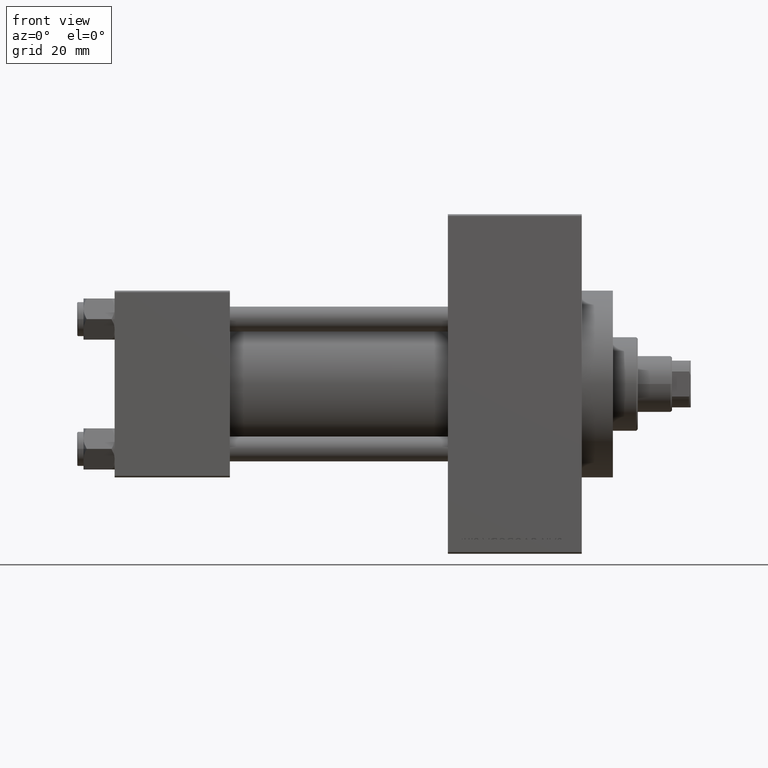
[diagram: clean part render]
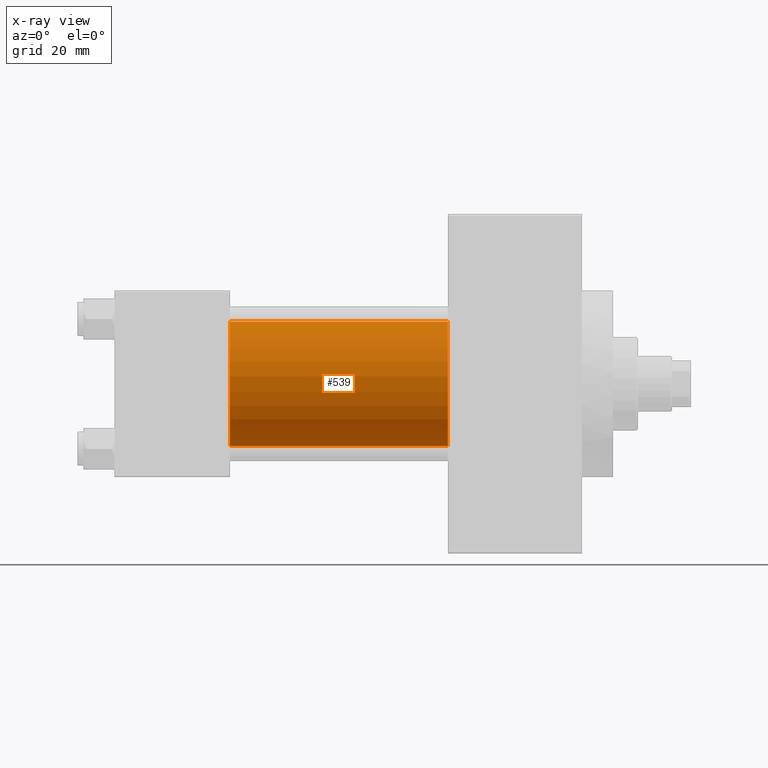
[diagram: x-ray — body ghosted, one internal face saturated and labeled with its STEP entity id]
A machine part, front view, then the same camera in x-ray: the body is ghosted and one INTERNAL B-rep face — a face not visible from any outside direction — is saturated and labeled: STEP entity #539.
In plain terms, the highlighted cylindrical surface (partial cylindrical patch) has radius 20 mm, axis along (-1, -0, -0).
Its self-contained STEP definition (entity closure, byte-faithful):
#207 = DIRECTION ( 'NONE',  ( -1.000000000000000000, -0.000000000000000000, -0.000000000000000000 ) ) ;
#306 = CIRCLE ( 'NONE', #28190, 20.00000000000000000 ) ;
#539 = ADVANCED_FACE ( 'NONE', ( #4692 ), #42842, .F. ) ;
#667 = CARTESIAN_POINT ( 'NONE',  ( 37.00000000000000000, -2.602085213965210642E-15, 0.000000000000000000 ) ) ;
#2317 = VECTOR ( 'NONE', #19751, 1000.000000000000000 ) ;
#2398 = VERTEX_POINT ( 'NONE', #23637 ) ;
#4118 = ORIENTED_EDGE ( 'NONE', *, *, #28601, .F. ) ;
#4518 = DIRECTION ( 'NONE',  ( 0.000000000000000000, 0.000000000000000000, -1.000000000000000000 ) ) ;
#4692 = FACE_OUTER_BOUND ( 'NONE', #46198, .T. ) ;
#8412 = ORIENTED_EDGE ( 'NONE', *, *, #38231, .T. ) ;
#8647 = EDGE_CURVE ( 'NONE', #22815, #20353, #14584, .T. ) ;
#10279 = EDGE_CURVE ( 'NONE', #14136, #2398, #306, .T. ) ;
#10324 = AXIS2_PLACEMENT_3D ( 'NONE', #19902, #39343, #31617 ) ;
#11414 = DIRECTION ( 'NONE',  ( 1.000000000000000000, 0.000000000000000000, 0.000000000000000000 ) ) ;
#11692 = CARTESIAN_POINT ( 'NONE',  ( 37.00000000000000000, -2.602085213965210642E-15, 20.00000000000000000 ) ) ;
#14136 = VERTEX_POINT ( 'NONE', #11692 ) ;
#14584 = CIRCLE ( 'NONE', #41662, 20.00000000000000000 ) ;
#19146 = CARTESIAN_POINT ( 'NONE',  ( 107.0000000000000142, -1.527916156705042519E-16, -20.00000000000000000 ) ) ;
#19751 = DIRECTION ( 'NONE',  ( -1.000000000000000000, -0.000000000000000000, -0.000000000000000000 ) ) ;
#19902 = CARTESIAN_POINT ( 'NONE',  ( 107.0000000000000142, -2.602085213965210642E-15, 0.000000000000000000 ) ) ;
#20245 = CARTESIAN_POINT ( 'NONE',  ( 107.0000000000000142, -2.602085213965210642E-15, 20.00000000000000000 ) ) ;
#20353 = VERTEX_POINT ( 'NONE', #36563 ) ;
#22815 = VERTEX_POINT ( 'NONE', #33993 ) ;
#23486 = DIRECTION ( 'NONE',  ( 1.000000000000000000, 0.000000000000000000, 0.000000000000000000 ) ) ;
#23637 = CARTESIAN_POINT ( 'NONE',  ( 37.00000000000000000, -1.527916156705042519E-16, -20.00000000000000000 ) ) ;
#26140 = DIRECTION ( 'NONE',  ( 0.000000000000000000, 0.000000000000000000, -1.000000000000000000 ) ) ;
#28190 = AXIS2_PLACEMENT_3D ( 'NONE', #667, #11414, #26140 ) ;
#28601 = EDGE_CURVE ( 'NONE', #22815, #14136, #38932, .T. ) ;
#31617 = DIRECTION ( 'NONE',  ( 0.000000000000000000, 0.000000000000000000, 1.000000000000000000 ) ) ;
#33763 = ORIENTED_EDGE ( 'NONE', *, *, #10279, .F. ) ;
#33993 = CARTESIAN_POINT ( 'NONE',  ( 107.0000000000000142, -2.602085213965210642E-15, 20.00000000000000000 ) ) ;
#34370 = ORIENTED_EDGE ( 'NONE', *, *, #8647, .T. ) ;
#36563 = CARTESIAN_POINT ( 'NONE',  ( 107.0000000000000142, -1.527916156705042519E-16, -20.00000000000000000 ) ) ;
#38231 = EDGE_CURVE ( 'NONE', #20353, #2398, #38333, .T. ) ;
#38333 = LINE ( 'NONE', #19146, #39955 ) ;
#38932 = LINE ( 'NONE', #20245, #2317 ) ;
#39343 = DIRECTION ( 'NONE',  ( -1.000000000000000000, -0.000000000000000000, -0.000000000000000000 ) ) ;
#39955 = VECTOR ( 'NONE', #207, 1000.000000000000000 ) ;
#41662 = AXIS2_PLACEMENT_3D ( 'NONE', #42427, #23486, #4518 ) ;
#42427 = CARTESIAN_POINT ( 'NONE',  ( 107.0000000000000142, -2.602085213965210642E-15, 0.000000000000000000 ) ) ;
#42842 = CYLINDRICAL_SURFACE ( 'NONE', #10324, 20.00000000000000000 ) ;
#46198 = EDGE_LOOP ( 'NONE', ( #34370, #8412, #33763, #4118 ) ) ;